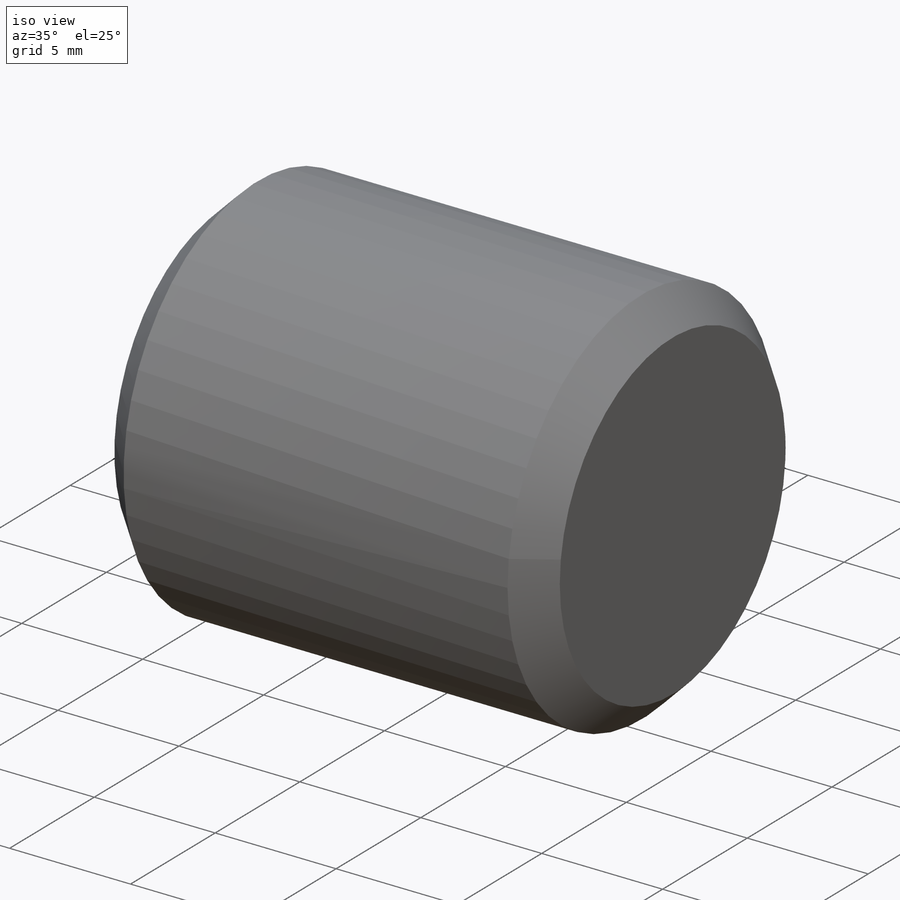
[diagram: iso view]
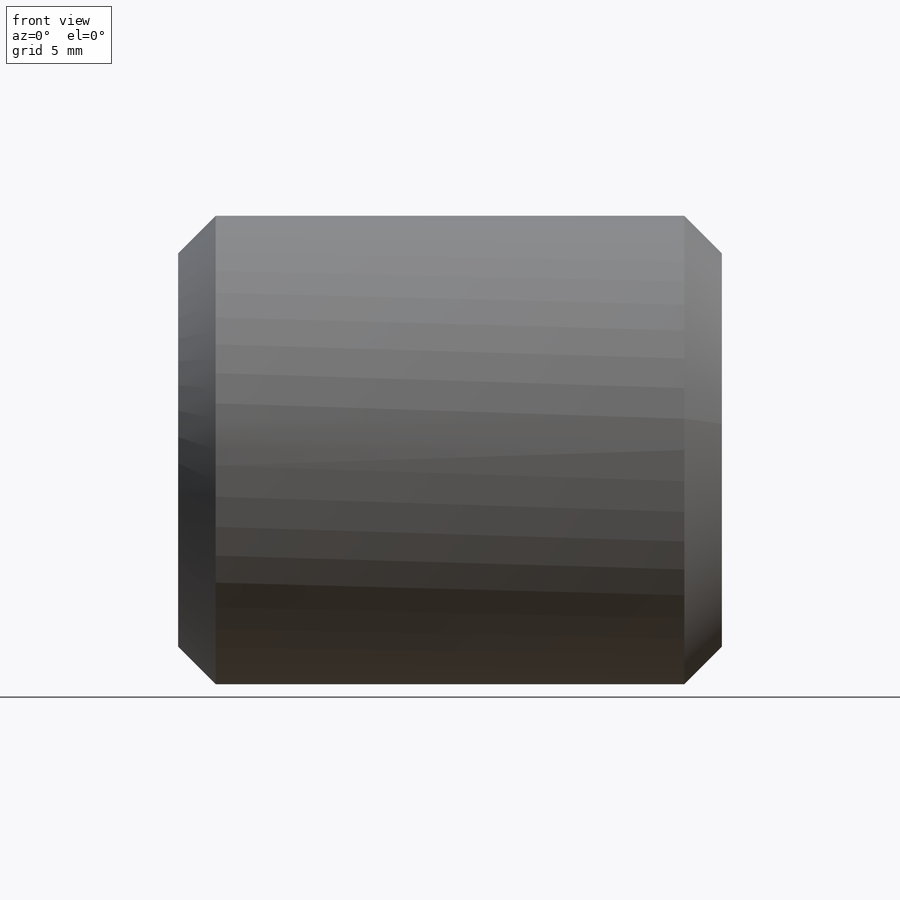
[diagram: front view]
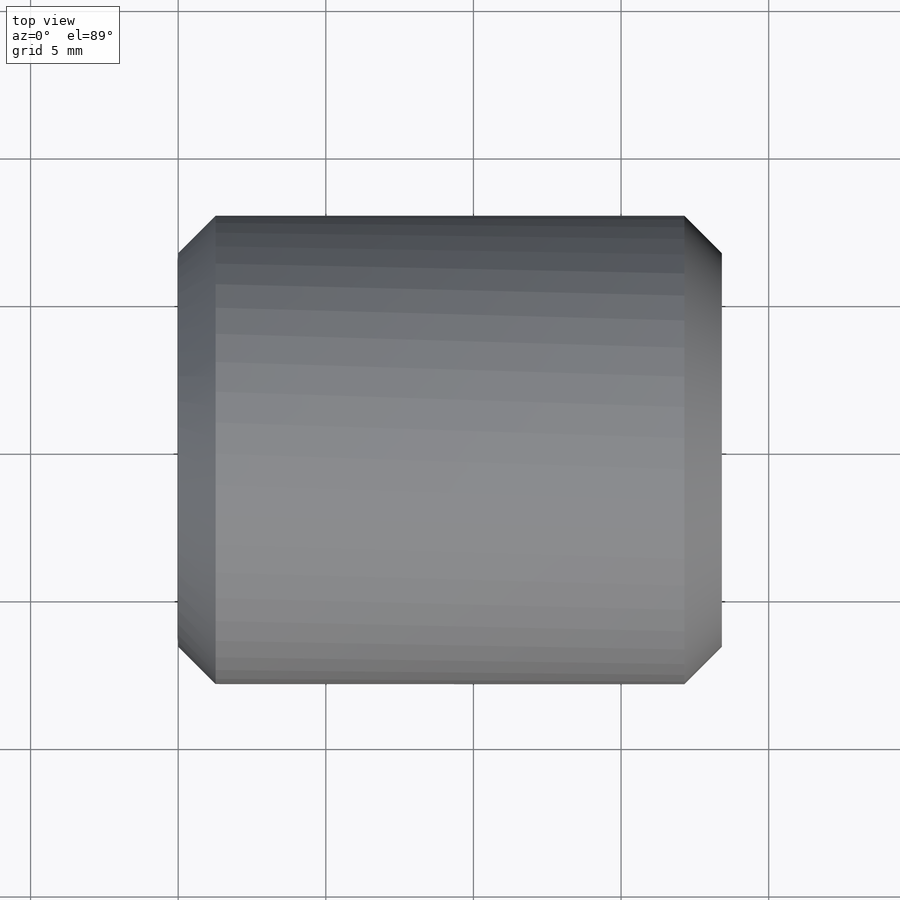
[diagram: top view]
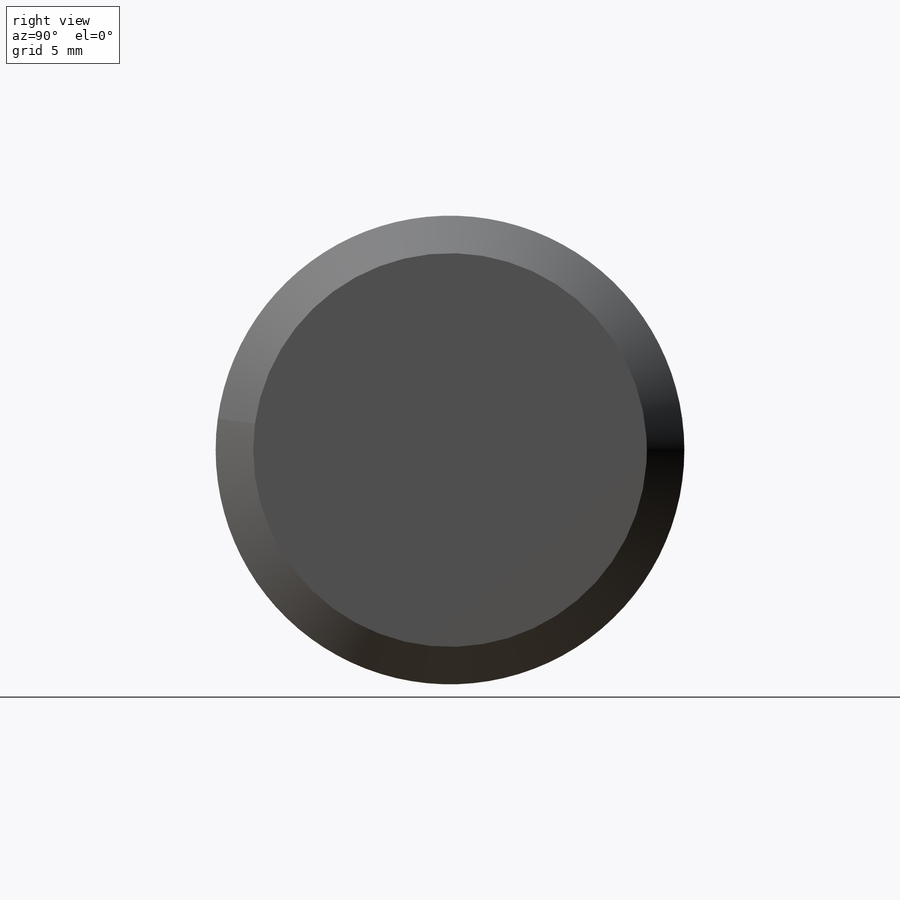
[diagram: right view]
SOLIDWORKS PART (.sldprt)
format: sldprt  version: not decoded by parser v0  size: 161,792 bytes
history: native  units: mm
features: sketch x4, cut_extrude x2, material x1, extrude x1, chamfer x1 (+11 scaffold rows collapsed)
feature tree (20):
  scaffold x11  (default folders/planes/origin — collapsed)
  material  "Material <not specified>"
  sketch  "Sketch2"  dims[D1=15.875mm]
  extrude  "Boss-Extrude1"  Depth=18.415mm
  chamfer  "Chamfer1"  Distance=1.27mm Angle=45deg
  sketch  "Sketch3"  dims[D1=~5.24417mm]
  sketch  "Sketch4"  dims[c1.D1=3.175mm c1.D2=3.175mm c2.D1=~13.097172mm c2.D2=4.572mm]
  cut_extrude  "Cut-Extrude2"  Depth=3.175mm
  sketch  "Sketch5"  dims[D1=7.62mm]
  cut_extrude  "Cut-Extrude3"  Depth=3.175mm
decode coverage: 8 of 8 modeling features carry decoded parameters
note: ~ marks probable driven/reference dimensions
note: suppression state not decoded; provenance and decode notes live in map.json
